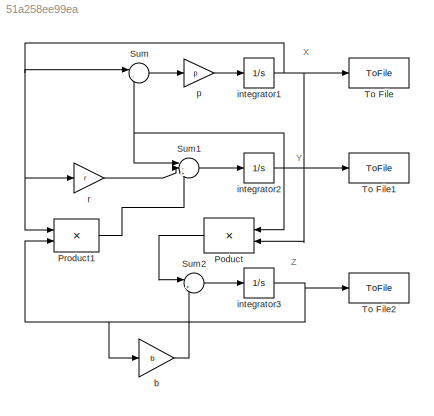
MODEL slx_51a258ee99ea
KIND model
CONFIG AbsTol = auto
CONFIG EnableMultiTasking = on
CONFIG FixedStep = auto
CONFIG MaxStep = auto
CONFIG MinStep = auto
CONFIG RelTol = 1e-3
CONFIG SampleTimeConstraint = Unconstrained
CONFIG SolverName = ode45
CONFIG StartTime = 0.0
CONFIG StopTime = 44
WORKSPACE source: mxarray member
WORKSPACE X0 = 0
BLOCK [Product] Poduct
  NameLocation = top
  OutDataTypeStr = Inherit: Same as first input
  Ports = [2, 1]
  SaturateOnIntegerOverflow = on
BLOCK [Product] Product1
  OutDataTypeStr = Inherit: Same as first input
  Ports = [2, 1]
  SaturateOnIntegerOverflow = on
BLOCK [Sum] Sum
  Inputs = |-+
  Ports = [2, 1]
  SaturateOnIntegerOverflow = on
BLOCK [Sum] Sum1
  Inputs = |-+-
  Ports = [3, 1]
  SaturateOnIntegerOverflow = on
BLOCK [Sum] Sum2
  Inputs = |+-
  Ports = [2, 1]
  SaturateOnIntegerOverflow = on
BLOCK [ToFile] To File
  Filename = X.mat
  MatrixName = X
  Ports = [1]
  SampleTime = 0.001
BLOCK [ToFile] To File1
  Filename = Y.mat
  MatrixName = Y
  Ports = [1]
  SampleTime = 0.001
BLOCK [ToFile] To File2
  Filename = Z.mat
  MatrixName = Z
  Ports = [1]
  SampleTime = 0.001
BLOCK [Gain] b
  Gain = b
  OutDataTypeStr = Inherit: Same as input
  ParamDataTypeStr = Inherit: Same as input
  SaturateOnIntegerOverflow = on
BLOCK [Integrator] integrator1
  InitialCondition = 20
  Ports = [1, 1]
BLOCK [Integrator] integrator2
  InitialCondition = 166
  Ports = [1, 1]
BLOCK [Integrator] integrator3
  InitialCondition = 163
  Ports = [1, 1]
BLOCK [Gain] p
  Gain = p
  OutDataTypeStr = Inherit: Same as input
  ParamDataTypeStr = Inherit: Same as input
  SaturateOnIntegerOverflow = on
BLOCK [Gain] r
  Gain = r
  OutDataTypeStr = Inherit: Same as input
  ParamDataTypeStr = Inherit: Same as input
  SaturateOnIntegerOverflow = on
ANNOTATION (root): X
ANNOTATION (root): Y
ANNOTATION (root): Z
LINE Poduct:1 -> Sum2:1
LINE Product1:1 -> Sum1:3
LINE Sum1:1 -> integrator2:1
LINE Sum2:1 -> integrator3:1
LINE Sum:1 -> p:1
LINE b:1 -> Sum2:2
NET integrator1:1 -> Poduct:2, Product1:1, Sum:1, To File:1, r:1
NET integrator2:1 -> Poduct:1, Sum1:1, Sum:2, To File1:1
NET integrator3:1 -> Product1:2, To File2:1, b:1
LINE p:1 -> integrator1:1
LINE r:1 -> Sum1:2
note: NET lines group one-source signal fan-out (src -> all destinations, sorted); 1:1 wires keep LINE
